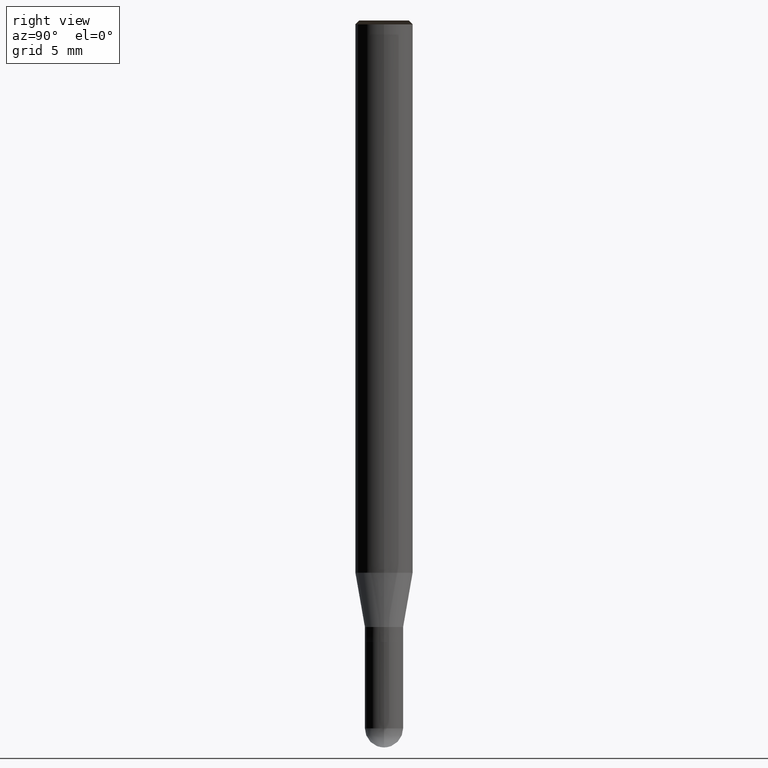
[diagram: clean part render]
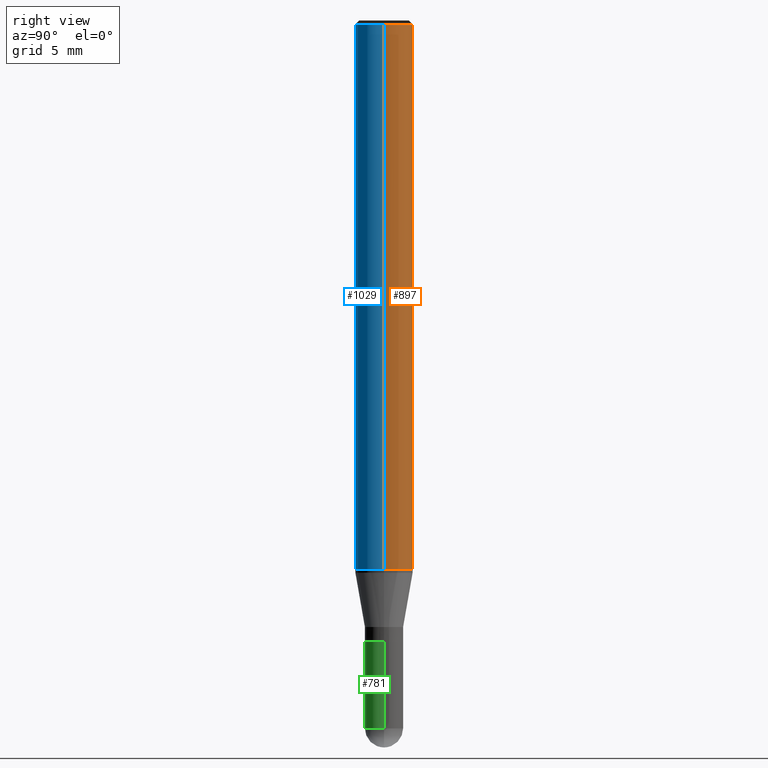
[diagram: same view with three faces highlighted in distinct colors, each labeled with its STEP entity id]
A machine part, right view with three faces highlighted in distinct colors.
Their STEP definitions:

[orange] entity #897 — the highlighted face is a freeform B-spline surface patch.
#656=CARTESIAN_POINT('',(1.5,0.0,0.0));
#657=CARTESIAN_POINT('',(1.5,1.5,0.0));
#658=CARTESIAN_POINT('',(0.0,1.5,0.0));
#659=CARTESIAN_POINT('',(-1.5,1.5,0.0));
#660=CARTESIAN_POINT('',(-1.5,0.0,0.0));
#661=CARTESIAN_POINT('',(1.5,0.0,28.5));
#662=CARTESIAN_POINT('',(1.5,1.5,28.5));
#663=CARTESIAN_POINT('',(0.0,1.5,28.5));
#664=CARTESIAN_POINT('',(-1.5,1.5,28.5));
#665=CARTESIAN_POINT('',(-1.5,0.0,28.5));
#878=(
BOUNDED_SURFACE()
B_SPLINE_SURFACE(1,2,(
(#656,#657,#658,#659,#660),
(#661,#662,#663,#664,#665)
), .UNSPECIFIED.,.F.,.F.,.F.)
B_SPLINE_SURFACE_WITH_KNOTS((2,2),(3,2,3),(
0.0,1.0),(
0.0,0.5,1.0), .UNSPECIFIED.)
GEOMETRIC_REPRESENTATION_ITEM()
RATIONAL_B_SPLINE_SURFACE(((1.0,0.707106781187,1.0,0.707106781187,1.0),
(1.0,0.707106781187,1.0,0.707106781187,1.0)
))
REPRESENTATION_ITEM('')
SURFACE()
);
#879=(
BOUNDED_CURVE()
B_SPLINE_CURVE(2,(#660,#659,#658,#657,#656),.UNSPECIFIED.,.F.,.F.)
B_SPLINE_CURVE_WITH_KNOTS((3,2,3),
(0.0,0.5,1.0),.UNSPECIFIED.)
CURVE()
GEOMETRIC_REPRESENTATION_ITEM()
RATIONAL_B_SPLINE_CURVE((1.0,0.707106781187,1.0,0.707106781187,1.0))
REPRESENTATION_ITEM('')
);
#880=(
BOUNDED_CURVE()
B_SPLINE_CURVE(1,(#656,#661),.UNSPECIFIED.,.F.,.F.)
B_SPLINE_CURVE_WITH_KNOTS((2,2),
(0.0,1.0),.UNSPECIFIED.)
CURVE()
GEOMETRIC_REPRESENTATION_ITEM()
RATIONAL_B_SPLINE_CURVE((1.0,1.0))
REPRESENTATION_ITEM('')
);
#881=(
BOUNDED_CURVE()
B_SPLINE_CURVE(2,(#661,#662,#663,#664,#665),.UNSPECIFIED.,.F.,.F.)
B_SPLINE_CURVE_WITH_KNOTS((3,2,3),
(0.0,0.5,1.0),.UNSPECIFIED.)
CURVE()
GEOMETRIC_REPRESENTATION_ITEM()
RATIONAL_B_SPLINE_CURVE((1.0,0.707106781187,1.0,0.707106781187,1.0))
REPRESENTATION_ITEM('')
);
#882=(
BOUNDED_CURVE()
B_SPLINE_CURVE(1,(#665,#660),.UNSPECIFIED.,.F.,.F.)
B_SPLINE_CURVE_WITH_KNOTS((2,2),
(0.0,1.0),.UNSPECIFIED.)
CURVE()
GEOMETRIC_REPRESENTATION_ITEM()
RATIONAL_B_SPLINE_CURVE((1.0,1.0))
REPRESENTATION_ITEM('')
);
#883=VERTEX_POINT('',#656);
#884=VERTEX_POINT('',#660);
#885=VERTEX_POINT('',#661);
#886=VERTEX_POINT('',#665);
#887=EDGE_CURVE('',#884,#883,#879,.T.);
#888=EDGE_CURVE('',#883,#885,#880,.T.);
#889=EDGE_CURVE('',#885,#886,#881,.T.);
#890=EDGE_CURVE('',#886,#884,#882,.T.);
#891=ORIENTED_EDGE('',*,*,#887,.T.);
#892=ORIENTED_EDGE('',*,*,#888,.T.);
#893=ORIENTED_EDGE('',*,*,#889,.T.);
#894=ORIENTED_EDGE('',*,*,#890,.T.);
#895=EDGE_LOOP('',(#891,#892,#893,#894));
#896=FACE_OUTER_BOUND('',#895,.T.);
#897=ADVANCED_FACE('',(#896),#878,.T.);

[blue] entity #1029 — the highlighted face is a freeform B-spline surface patch.
#656=CARTESIAN_POINT('',(1.5,0.0,0.0));
#660=CARTESIAN_POINT('',(-1.5,0.0,0.0));
#661=CARTESIAN_POINT('',(1.5,0.0,28.5));
#665=CARTESIAN_POINT('',(-1.5,0.0,28.5));
#678=CARTESIAN_POINT('',(-1.5,-1.5,0.0));
#679=CARTESIAN_POINT('',(0.0,-1.5,0.0));
#680=CARTESIAN_POINT('',(1.5,-1.5,0.0));
#681=CARTESIAN_POINT('',(-1.5,-1.5,28.5));
#682=CARTESIAN_POINT('',(0.0,-1.5,28.5));
#683=CARTESIAN_POINT('',(1.5,-1.5,28.5));
#1010=(
BOUNDED_SURFACE()
B_SPLINE_SURFACE(1,2,(
(#660,#678,#679,#680,#656),
(#665,#681,#682,#683,#661)
), .UNSPECIFIED.,.F.,.F.,.F.)
B_SPLINE_SURFACE_WITH_KNOTS((2,2),(3,2,3),(
0.0,1.0),(
0.0,0.5,1.0), .UNSPECIFIED.)
GEOMETRIC_REPRESENTATION_ITEM()
RATIONAL_B_SPLINE_SURFACE(((1.0,0.707106781187,1.0,0.707106781187,1.0),
(1.0,0.707106781187,1.0,0.707106781187,1.0)
))
REPRESENTATION_ITEM('')
SURFACE()
);
#1011=(
BOUNDED_CURVE()
B_SPLINE_CURVE(2,(#656,#680,#679,#678,#660),.UNSPECIFIED.,.F.,.F.)
B_SPLINE_CURVE_WITH_KNOTS((3,2,3),
(0.0,0.5,1.0),.UNSPECIFIED.)
CURVE()
GEOMETRIC_REPRESENTATION_ITEM()
RATIONAL_B_SPLINE_CURVE((1.0,0.707106781187,1.0,0.707106781187,1.0))
REPRESENTATION_ITEM('')
);
#1012=(
BOUNDED_CURVE()
B_SPLINE_CURVE(1,(#660,#665),.UNSPECIFIED.,.F.,.F.)
B_SPLINE_CURVE_WITH_KNOTS((2,2),
(0.0,1.0),.UNSPECIFIED.)
CURVE()
GEOMETRIC_REPRESENTATION_ITEM()
RATIONAL_B_SPLINE_CURVE((1.0,1.0))
REPRESENTATION_ITEM('')
);
#1013=(
BOUNDED_CURVE()
B_SPLINE_CURVE(2,(#665,#681,#682,#683,#661),.UNSPECIFIED.,.F.,.F.)
B_SPLINE_CURVE_WITH_KNOTS((3,2,3),
(0.0,0.5,1.0),.UNSPECIFIED.)
CURVE()
GEOMETRIC_REPRESENTATION_ITEM()
RATIONAL_B_SPLINE_CURVE((1.0,0.707106781187,1.0,0.707106781187,1.0))
REPRESENTATION_ITEM('')
);
#1014=(
BOUNDED_CURVE()
B_SPLINE_CURVE(1,(#661,#656),.UNSPECIFIED.,.F.,.F.)
B_SPLINE_CURVE_WITH_KNOTS((2,2),
(0.0,1.0),.UNSPECIFIED.)
CURVE()
GEOMETRIC_REPRESENTATION_ITEM()
RATIONAL_B_SPLINE_CURVE((1.0,1.0))
REPRESENTATION_ITEM('')
);
#1015=VERTEX_POINT('',#656);
#1016=VERTEX_POINT('',#660);
#1017=VERTEX_POINT('',#661);
#1018=VERTEX_POINT('',#665);
#1019=EDGE_CURVE('',#1015,#1016,#1011,.T.);
#1020=EDGE_CURVE('',#1016,#1018,#1012,.T.);
#1021=EDGE_CURVE('',#1018,#1017,#1013,.T.);
#1022=EDGE_CURVE('',#1017,#1015,#1014,.T.);
#1023=ORIENTED_EDGE('',*,*,#1019,.T.);
#1024=ORIENTED_EDGE('',*,*,#1020,.T.);
#1025=ORIENTED_EDGE('',*,*,#1021,.T.);
#1026=ORIENTED_EDGE('',*,*,#1022,.T.);
#1027=EDGE_LOOP('',(#1023,#1024,#1025,#1026));
#1028=FACE_OUTER_BOUND('',#1027,.T.);
#1029=ADVANCED_FACE('',(#1028),#1010,.T.);

[green] entity #781 — the highlighted face is a freeform B-spline surface patch.
#626=CARTESIAN_POINT('',(1.0,0.0,-8.3));
#630=CARTESIAN_POINT('',(-1.0,0.0,-8.3));
#631=CARTESIAN_POINT('',(1.0,0.0,-3.7875));
#635=CARTESIAN_POINT('',(-1.0,0.0,-3.7875));
#640=CARTESIAN_POINT('',(-1.0,-1.0,-8.3));
#641=CARTESIAN_POINT('',(0.0,-1.0,-8.3));
#642=CARTESIAN_POINT('',(1.0,-1.0,-8.3));
#643=CARTESIAN_POINT('',(-1.0,-1.0,-3.7875));
#644=CARTESIAN_POINT('',(0.0,-1.0,-3.7875));
#645=CARTESIAN_POINT('',(1.0,-1.0,-3.7875));
#762=(
BOUNDED_SURFACE()
B_SPLINE_SURFACE(1,2,(
(#630,#640,#641,#642,#626),
(#635,#643,#644,#645,#631)
), .UNSPECIFIED.,.F.,.F.,.F.)
B_SPLINE_SURFACE_WITH_KNOTS((2,2),(3,2,3),(
0.0,1.0),(
0.0,0.5,1.0), .UNSPECIFIED.)
GEOMETRIC_REPRESENTATION_ITEM()
RATIONAL_B_SPLINE_SURFACE(((1.0,0.707106781187,1.0,0.707106781187,1.0),
(1.0,0.707106781187,1.0,0.707106781187,1.0)
))
REPRESENTATION_ITEM('')
SURFACE()
);
#763=(
BOUNDED_CURVE()
B_SPLINE_CURVE(2,(#626,#642,#641,#640,#630),.UNSPECIFIED.,.F.,.F.)
B_SPLINE_CURVE_WITH_KNOTS((3,2,3),
(0.0,0.5,1.0),.UNSPECIFIED.)
CURVE()
GEOMETRIC_REPRESENTATION_ITEM()
RATIONAL_B_SPLINE_CURVE((1.0,0.707106781187,1.0,0.707106781187,1.0))
REPRESENTATION_ITEM('')
);
#764=(
BOUNDED_CURVE()
B_SPLINE_CURVE(1,(#630,#635),.UNSPECIFIED.,.F.,.F.)
B_SPLINE_CURVE_WITH_KNOTS((2,2),
(0.0,1.0),.UNSPECIFIED.)
CURVE()
GEOMETRIC_REPRESENTATION_ITEM()
RATIONAL_B_SPLINE_CURVE((1.0,1.0))
REPRESENTATION_ITEM('')
);
#765=(
BOUNDED_CURVE()
B_SPLINE_CURVE(2,(#635,#643,#644,#645,#631),.UNSPECIFIED.,.F.,.F.)
B_SPLINE_CURVE_WITH_KNOTS((3,2,3),
(0.0,0.5,1.0),.UNSPECIFIED.)
CURVE()
GEOMETRIC_REPRESENTATION_ITEM()
RATIONAL_B_SPLINE_CURVE((1.0,0.707106781187,1.0,0.707106781187,1.0))
REPRESENTATION_ITEM('')
);
#766=(
BOUNDED_CURVE()
B_SPLINE_CURVE(1,(#631,#626),.UNSPECIFIED.,.F.,.F.)
B_SPLINE_CURVE_WITH_KNOTS((2,2),
(0.0,1.0),.UNSPECIFIED.)
CURVE()
GEOMETRIC_REPRESENTATION_ITEM()
RATIONAL_B_SPLINE_CURVE((1.0,1.0))
REPRESENTATION_ITEM('')
);
#767=VERTEX_POINT('',#626);
#768=VERTEX_POINT('',#630);
#769=VERTEX_POINT('',#631);
#770=VERTEX_POINT('',#635);
#771=EDGE_CURVE('',#767,#768,#763,.T.);
#772=EDGE_CURVE('',#768,#770,#764,.T.);
#773=EDGE_CURVE('',#770,#769,#765,.T.);
#774=EDGE_CURVE('',#769,#767,#766,.T.);
#775=ORIENTED_EDGE('',*,*,#771,.T.);
#776=ORIENTED_EDGE('',*,*,#772,.T.);
#777=ORIENTED_EDGE('',*,*,#773,.T.);
#778=ORIENTED_EDGE('',*,*,#774,.T.);
#779=EDGE_LOOP('',(#775,#776,#777,#778));
#780=FACE_OUTER_BOUND('',#779,.T.);
#781=ADVANCED_FACE('',(#780),#762,.T.);